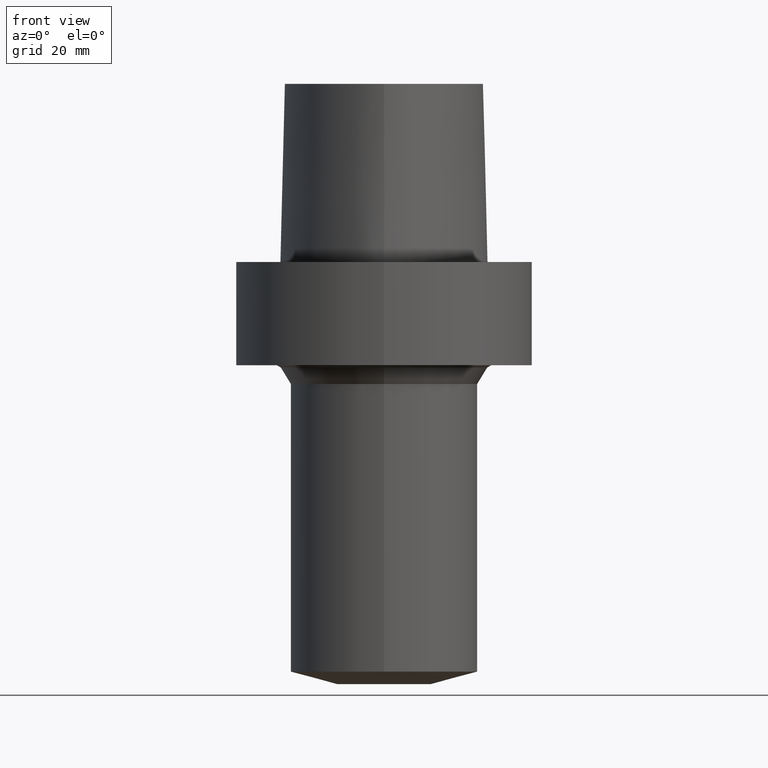
[diagram: clean part render]
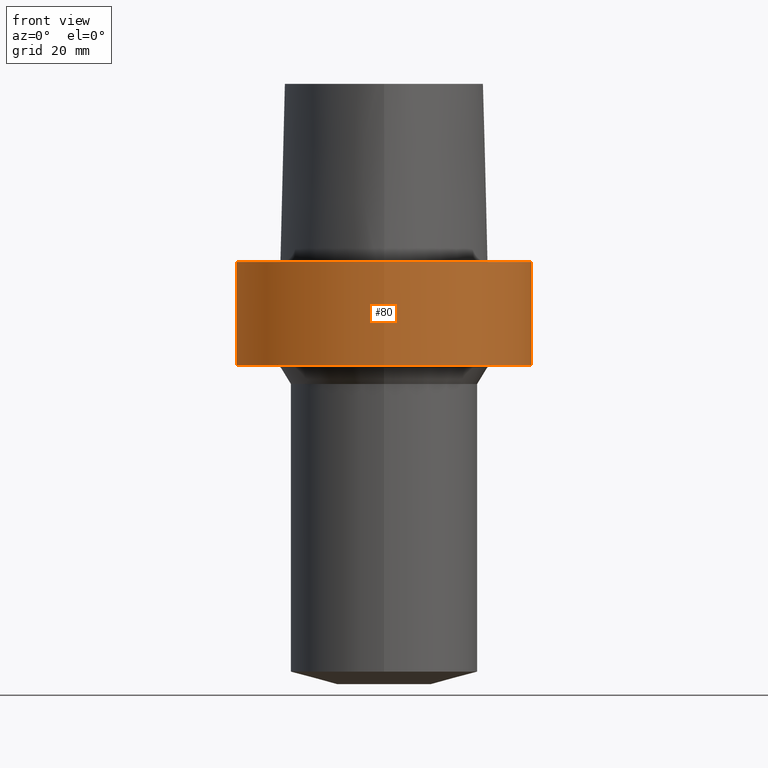
[diagram: same view with one face highlighted and labeled with its STEP entity id]
A machine part, front view. The second image highlights one B-rep face of the part: STEP entity #80.
In plain terms, the highlighted cylindrical surface (bore or boss wall) has radius 31.4925 mm, axis along (-0, -0, 1).
Its self-contained STEP definition (entity closure, byte-faithful):
#80=ADVANCED_FACE('',(#103,#104),#105,.T.);
#103=FACE_BOUND('',#134,.T.);
#104=FACE_BOUND('',#135,.T.);
#105=CYLINDRICAL_SURFACE('',#136,31.4925);
#134=EDGE_LOOP('',(#315));
#135=EDGE_LOOP('',(#316));
#136=AXIS2_PLACEMENT_3D('',#317,#318,#319);
#315=ORIENTED_EDGE('',*,*,#348,.T.);
#316=ORIENTED_EDGE('',*,*,#357,.F.);
#317=CARTESIAN_POINT('',(6.735557E-016,1.347111E-015,-11.0));
#318=DIRECTION('',(-0.0,-0.0,1.0));
#319=DIRECTION('',(0.0,1.0,0.0));
#348=EDGE_CURVE('',#363,#363,#364,.T.);
#357=EDGE_CURVE('',#381,#381,#382,.T.);
#363=VERTEX_POINT('',#390);
#364=CIRCLE('',#391,31.4925);
#381=VERTEX_POINT('',#468);
#382=CIRCLE('',#469,31.4925);
#390=CARTESIAN_POINT('',(-3.183036E-015,-31.4925,0.0));
#391=AXIS2_PLACEMENT_3D('',#510,#511,#512);
#468=CARTESIAN_POINT('',(-3.183036E-015,-31.4925,-22.0));
#469=AXIS2_PLACEMENT_3D('',#531,#532,#533);
#510=CARTESIAN_POINT('',(0.0,0.0,0.0));
#511=DIRECTION('',(0.0,0.0,-1.0));
#512=DIRECTION('',(0.0,1.0,0.0));
#531=CARTESIAN_POINT('',(1.347111E-015,2.694223E-015,-22.0));
#532=DIRECTION('',(0.0,0.0,-1.0));
#533=DIRECTION('',(0.0,1.0,0.0));